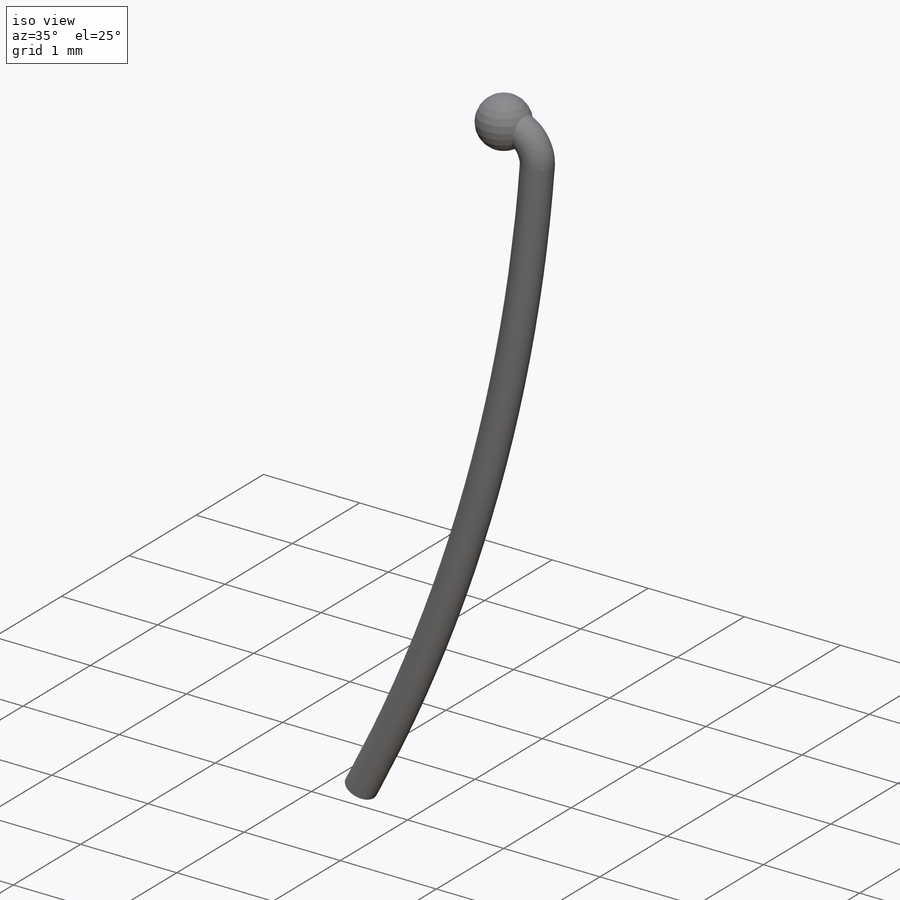
[diagram: iso view]
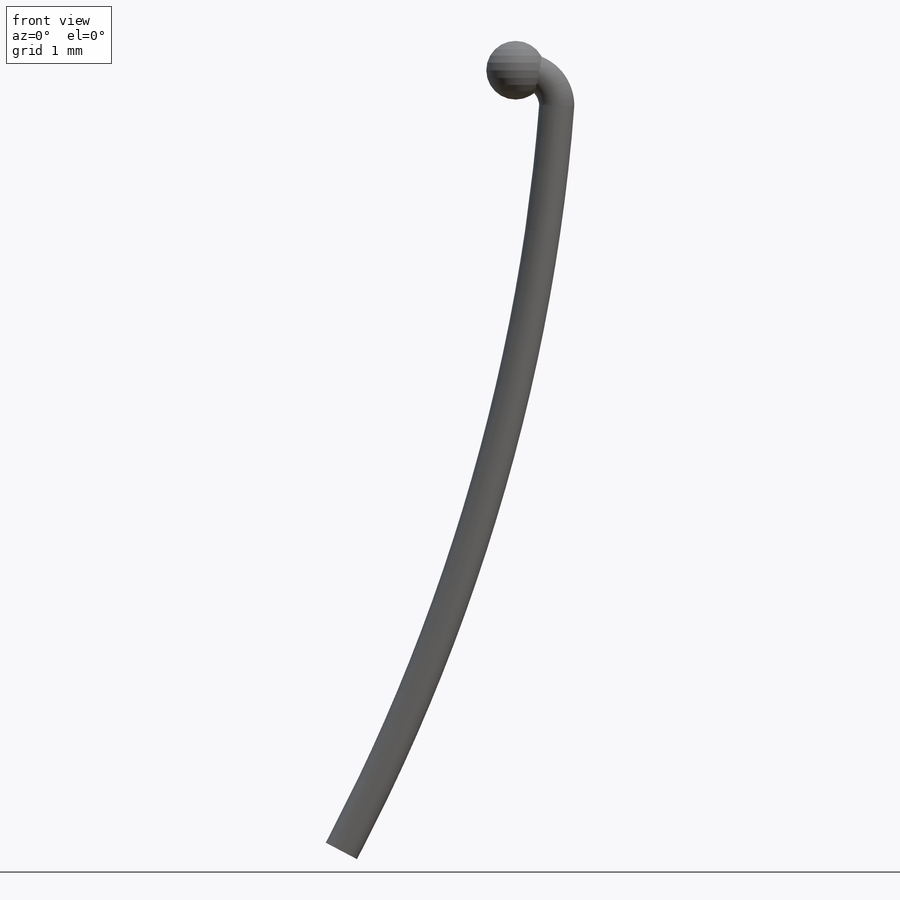
[diagram: front view]
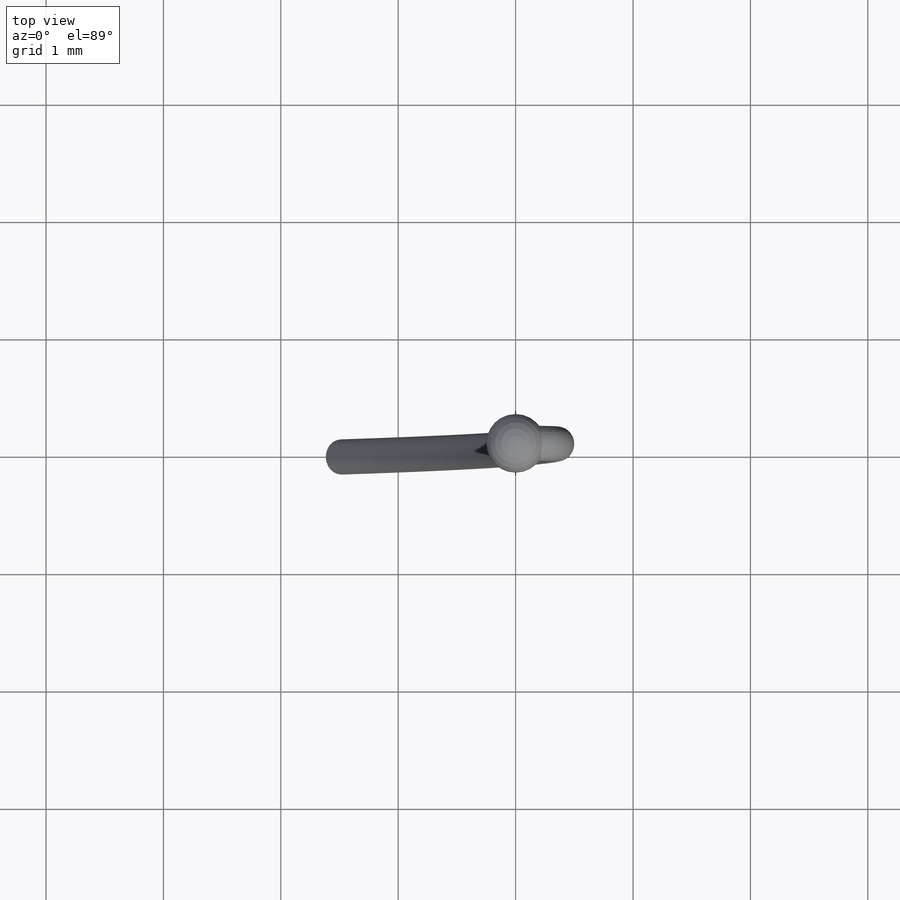
[diagram: top view]
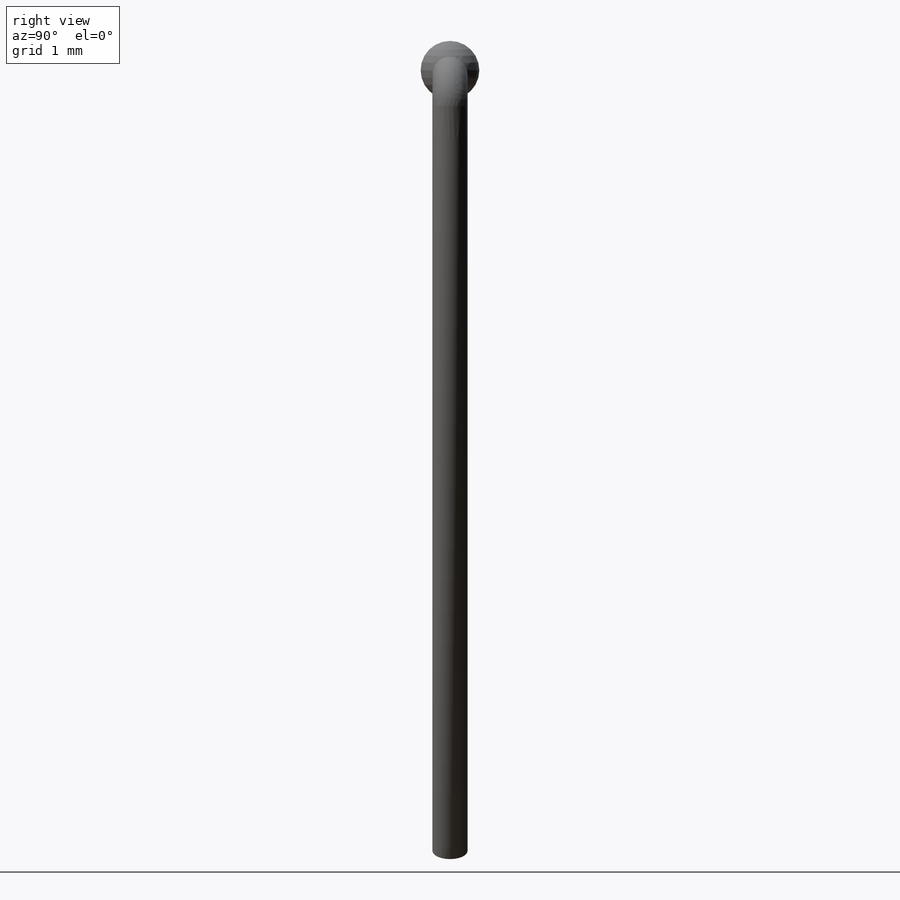
[diagram: right view]
SOLIDWORKS PART (.sldprt)
format: sldprt  version: not decoded by parser v0  size: 181,248 bytes
history: native  units: mm
features: sketch x5, material x1, sweep x1, extrude x1, revolve x1 (+13 scaffold rows collapsed)
feature tree (22):
  scaffold x13  (default folders/planes/origin — collapsed)
  material  "Material <not specified>"
  sketch  "Sketch1"  dims[D1=0.3mm]
  sketch  "Sketch3"  dims[c1.D3=0.3mm c1.D4=16.2488mm c1.D1=30.0mm c1.D2=0.84mm c2.D4=0.1mm c2.D2=0.35mm c2.D5=~6.609885mm c2.D1=23.35mm c3.D5=~6.65633mm]
  sweep  "Sweep1"
  sketch  "Sketch6"  dims[D1=0.4mm]
  extrude  "Boss-Extrude1"  Depth=0.15mm
  sketch  "Sketch4"  dims[c1.D1=0.5mm c2.D1=~0.844437mm]
  revolve  "Revolve2"  Angle=360deg
  sketch  "Sketch5"
decode coverage: 6 of 8 modeling features carry decoded parameters
note: ~ marks probable driven/reference dimensions
note: suppression state not decoded; provenance and decode notes live in map.json
